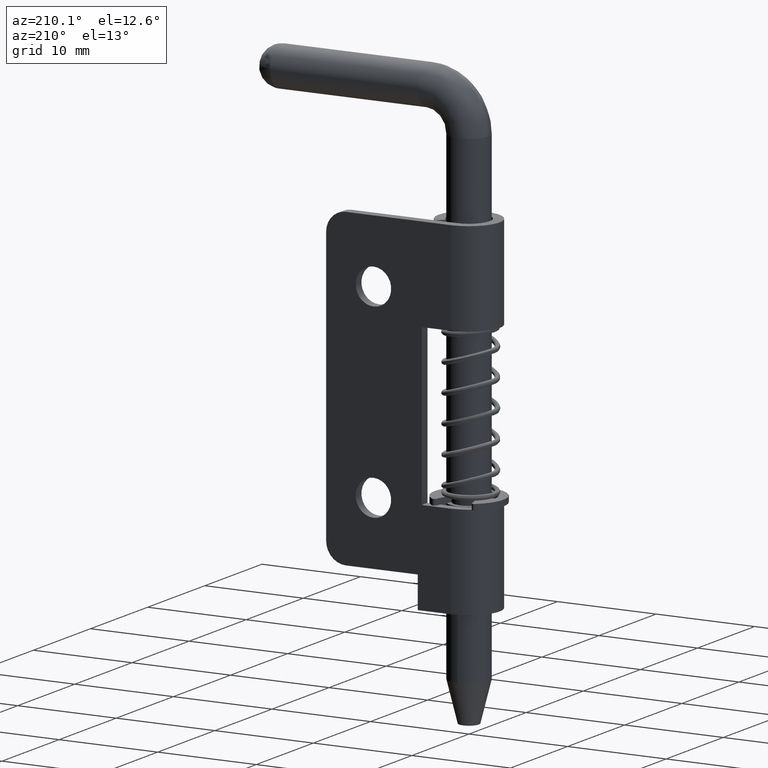
[diagram: clean part render]
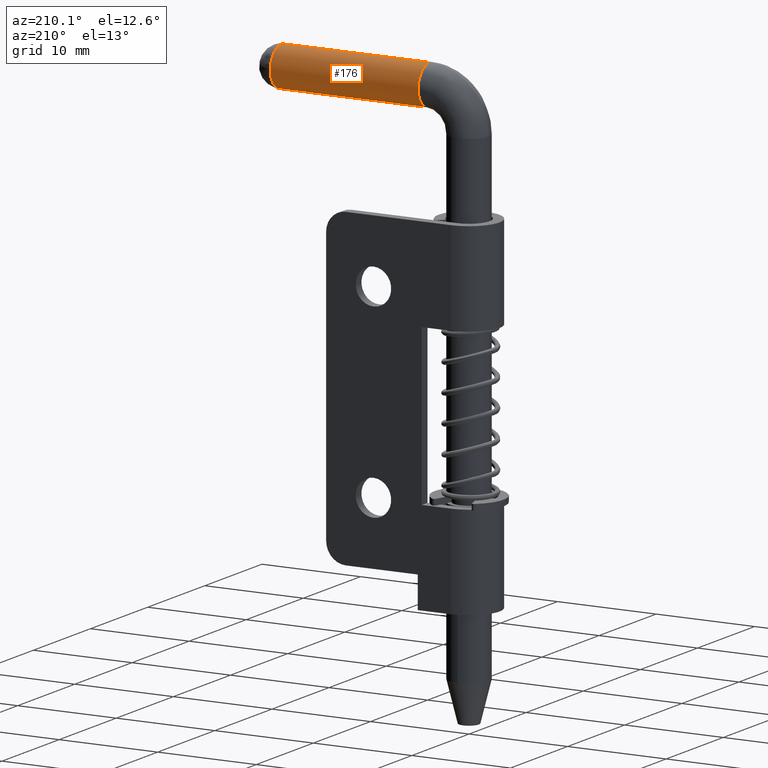
[diagram: same view with one face highlighted and labeled with its STEP entity id]
A machine part, auxiliary view. The second image highlights one B-rep face of the part: STEP entity #176.
In plain terms, the highlighted cylindrical surface (edge-blend (fillet) strip) has radius 2 mm, axis along (1, 0, 0).
Its self-contained STEP definition (entity closure, byte-faithful):
#176=ADVANCED_FACE('',(#508),#507,.T.);
#507=CYLINDRICAL_SURFACE('',#1312,2.00000000000E+00);
#508=FACE_OUTER_BOUND('',#1313,.T.);
#1309=CARTESIAN_POINT('',(1.15000000000E+01,8.67292349049E-11,3.71000000001E+01));
#1310=DIRECTION('',(1.00000000000E+00,-0.00000000000E+00,0.00000000000E+00));
#1311=DIRECTION('',(0.00000000000E+00,-1.06581410364E-14,-1.00000000000E+00));
#1312=AXIS2_PLACEMENT_3D('',#1309,#1310,#1311);
#1313=EDGE_LOOP('',(#3235,#3236,#3237,#3238));
#3235=ORIENTED_EDGE('',*,*,#3594,.F.);
#3236=ORIENTED_EDGE('',*,*,#3619,.F.);
#3237=ORIENTED_EDGE('',*,*,#3607,.T.);
#3238=ORIENTED_EDGE('',*,*,#3620,.T.);
#3594=EDGE_CURVE('',#4166,#4167,#4168,.T.);
#3607=EDGE_CURVE('',#4231,#4238,#4251,.T.);
#3619=EDGE_CURVE('',#4231,#4166,#4327,.T.);
#3620=EDGE_CURVE('',#4238,#4167,#4333,.T.);
#4166=VERTEX_POINT('',#5464);
#4167=VERTEX_POINT('',#5465);
#4168=CIRCLE('',#5469,2.00000000000E+00);
#4231=VERTEX_POINT('',#5509);
#4238=VERTEX_POINT('',#5514);
#4251=CIRCLE('',#5527,2.00000000000E+00);
#4327=(BOUNDED_CURVE() B_SPLINE_CURVE(1,(#5572,#5573),.UNSPECIFIED.,.F.,.F.) B_SPLINE_CURVE_WITH_KNOTS((2,2),(8.33333328360E-02,9.16666666871E-01),.UNSPECIFIED.) CURVE() GEOMETRIC_REPRESENTATION_ITEM() RATIONAL_B_SPLINE_CURVE((1.00000000000E+00,1.00000000000E+00)) REPRESENTATION_ITEM('') );
#4333=(BOUNDED_CURVE() B_SPLINE_CURVE(1,(#5574,#5575),.UNSPECIFIED.,.F.,.F.) B_SPLINE_CURVE_WITH_KNOTS((2,2),(8.33333333333E-02,9.16666666667E-01),.UNSPECIFIED.) CURVE() GEOMETRIC_REPRESENTATION_ITEM() RATIONAL_B_SPLINE_CURVE((7.50000000000E-01,7.50000000000E-01)) REPRESENTATION_ITEM('') );
#5464=CARTESIAN_POINT('',(1.90000000000E+01,8.67287450623E-11,3.51000000001E+01));
#5465=CARTESIAN_POINT('',(1.90000000000E+01,8.67292349049E-11,3.91000000001E+01));
#5466=CARTESIAN_POINT('',(1.90000000000E+01,8.67292349049E-11,3.71000000001E+01));
#5467=DIRECTION('',(1.00000000000E+00,0.00000000000E+00,-0.00000000000E+00));
#5468=DIRECTION('',(-0.00000000000E+00,-1.22460650000E-16,-1.00000000000E+00));
#5469=AXIS2_PLACEMENT_3D('',#5466,#5467,#5468);
#5509=CARTESIAN_POINT('',(4.00000000000E+00,8.67084182232E-11,3.51000000001E+01));
#5514=CARTESIAN_POINT('',(4.00000000000E+00,8.67086402678E-11,3.91000000001E+01));
#5524=CARTESIAN_POINT('',(4.00000000000E+00,8.67084182232E-11,3.71000000001E+01));
#5525=DIRECTION('',(1.00000000000E+00,0.00000000000E+00,0.00000000000E+00));
#5526=DIRECTION('',(-0.00000000000E+00,-0.00000000000E+00,1.00000000000E+00));
#5527=AXIS2_PLACEMENT_3D('',#5524,#5525,#5526);
#5572=CARTESIAN_POINT('',(3.99999999105E+00,8.67079186228E-11,3.51000000001E+01));
#5573=CARTESIAN_POINT('',(1.90000000037E+01,8.67079186228E-11,3.51000000001E+01));
#5574=CARTESIAN_POINT('',(4.00000000000E+00,8.67505326833E-11,3.91000000001E+01));
#5575=CARTESIAN_POINT('',(1.90000000000E+01,8.67505326833E-11,3.91000000001E+01));